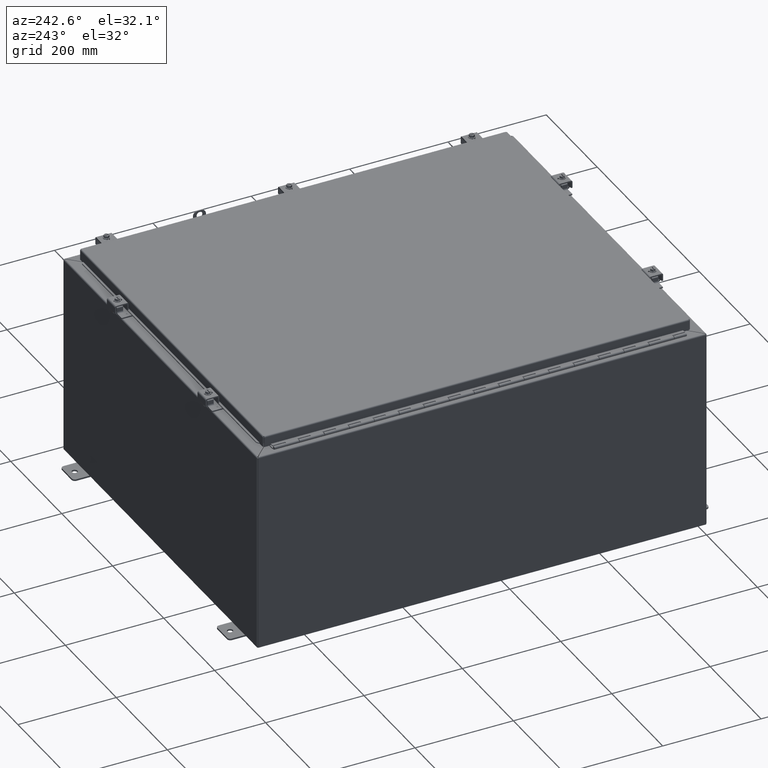
[diagram: clean part render]
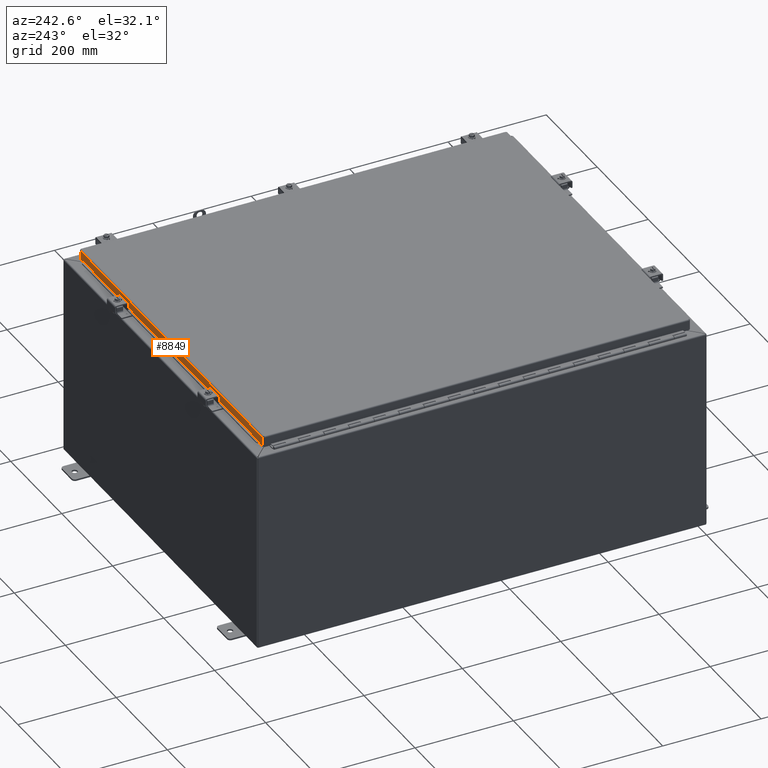
[diagram: same view with one face highlighted and labeled with its STEP entity id]
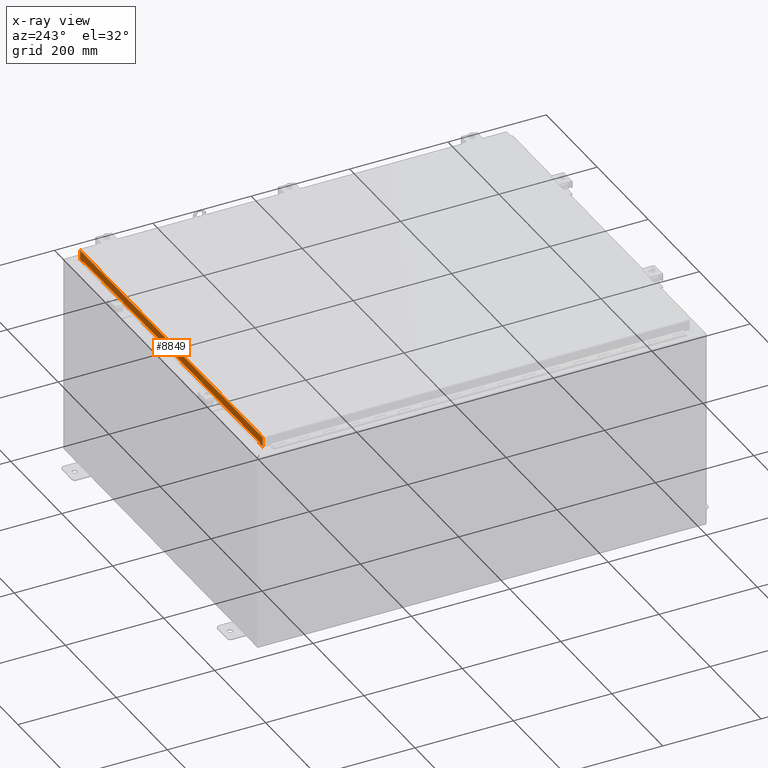
[diagram: x-ray of the same camera — body ghosted, the highlighted face saturated]
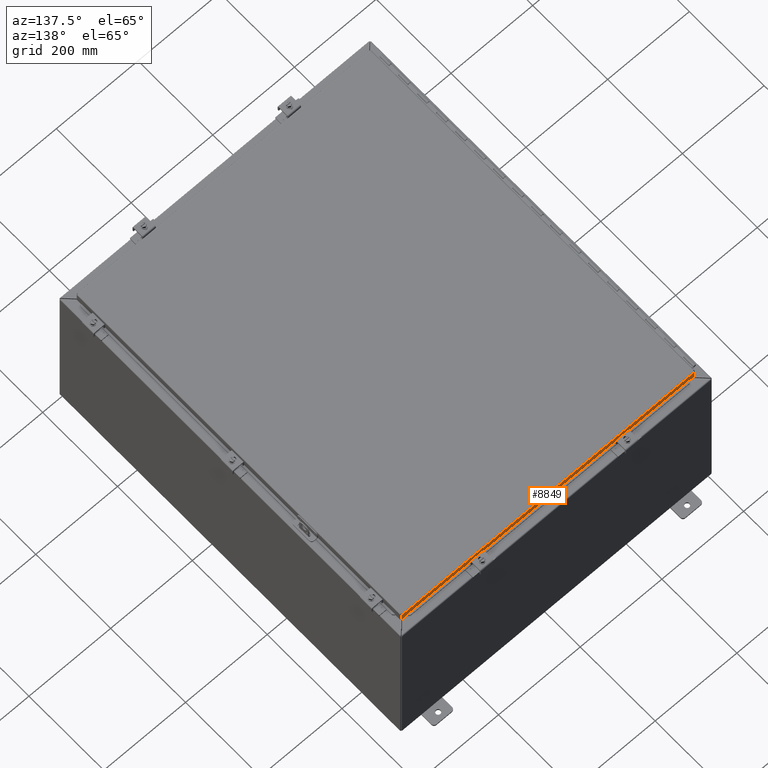
[diagram: same view with one face highlighted and labeled with its STEP entity id]
A machine part, auxiliary view. The second image highlights one B-rep face of the part: STEP entity #8849.
The next image is the same camera in x-ray: the body ghosted, the highlighted face saturated — about 0% of this face is hidden behind the body in this view.
A second angle (auxiliary view) of the same face is appended — the face is thin or edge-on in the first view.
In plain terms, the highlighted planar face has unit normal (-0, -1, -0).
Its self-contained STEP definition (entity closure, byte-faithful):
#8466=CARTESIAN_POINT('',(13.602451456543962,-17.093750000000043,0.769749999999993));
#8467=VERTEX_POINT('',#8466);
#8492=CARTESIAN_POINT('',(-13.602451456543982,-17.093750000000043,0.76974999999999));
#8493=VERTEX_POINT('',#8492);
#8548=CARTESIAN_POINT('',(13.60245145654396,-17.093750000000043,0.769749999999993));
#8549=DIRECTION('',(-1.0,0.0,0.0));
#8550=VECTOR('',#8549,27.204902913087942);
#8551=LINE('',#8548,#8550);
#8552=EDGE_CURVE('',#8467,#8493,#8551,.T.);
#8572=CARTESIAN_POINT('',(-13.602451456543982,-17.093750000000043,0.76954999999999));
#8573=VERTEX_POINT('',#8572);
#8580=CARTESIAN_POINT('',(-13.602451456543982,-17.093750000000043,0.76974999999999));
#8581=DIRECTION('',(0.0,0.0,-1.0));
#8582=VECTOR('',#8581,0.0002);
#8583=LINE('',#8580,#8582);
#8584=EDGE_CURVE('',#8493,#8573,#8583,.T.);
#8604=CARTESIAN_POINT('',(-13.602651456543983,-17.093750000000046,0.87499999999999));
#8605=VERTEX_POINT('',#8604);
#8612=CARTESIAN_POINT('',(-13.602651456543983,-17.093750000000043,0.76954999999999));
#8613=VERTEX_POINT('',#8612);
#8614=CARTESIAN_POINT('',(-13.602651456543983,-17.093750000000043,0.76954999999999));
#8615=DIRECTION('',(0.0,0.0,1.0));
#8616=VECTOR('',#8615,0.10545);
#8617=LINE('',#8614,#8616);
#8618=EDGE_CURVE('',#8613,#8605,#8617,.T.);
#8641=CARTESIAN_POINT('',(-13.602451456543982,-17.093750000000043,0.76954999999999));
#8642=DIRECTION('',(-1.0,0.0,0.0));
#8643=VECTOR('',#8642,0.000200000000001);
#8644=LINE('',#8641,#8643);
#8645=EDGE_CURVE('',#8573,#8613,#8644,.T.);
#8731=CARTESIAN_POINT('',(13.602651456543963,-17.093750000000043,0.769549999999993));
#8732=VERTEX_POINT('',#8731);
#8739=CARTESIAN_POINT('',(13.602651456543963,-17.093750000000046,0.874999999999993));
#8740=VERTEX_POINT('',#8739);
#8741=CARTESIAN_POINT('',(13.602651456543963,-17.09375000000005,0.874999999999993));
#8742=DIRECTION('',(0.0,0.0,-1.0));
#8743=VECTOR('',#8742,0.10545);
#8744=LINE('',#8741,#8743);
#8745=EDGE_CURVE('',#8740,#8732,#8744,.T.);
#8762=CARTESIAN_POINT('',(13.602451456543962,-17.093750000000043,0.769549999999993));
#8763=VERTEX_POINT('',#8762);
#8764=CARTESIAN_POINT('',(13.602451456543962,-17.093750000000039,0.769549999999993));
#8765=DIRECTION('',(0.0,0.0,1.0));
#8766=VECTOR('',#8765,0.0002);
#8767=LINE('',#8764,#8766);
#8768=EDGE_CURVE('',#8763,#8467,#8767,.T.);
#8787=CARTESIAN_POINT('',(13.602651456543963,-17.093750000000043,0.769549999999993));
#8788=DIRECTION('',(-1.0,0.0,0.0));
#8789=VECTOR('',#8788,0.000200000000001);
#8790=LINE('',#8787,#8789);
#8791=EDGE_CURVE('',#8732,#8763,#8790,.T.);
#8797=CARTESIAN_POINT('',(-0.046950708161296,-17.093750000000021,0.440146161915871));
#8798=DIRECTION('',(0.0,1.0,0.0));
#8799=DIRECTION('',(1.0,0.0,0.0));
#8800=AXIS2_PLACEMENT_3D('',#8797,#8798,#8799);
#8801=PLANE('',#8800);
#8802=ORIENTED_EDGE('',*,*,#8618,.T.);
#8803=CARTESIAN_POINT('',(-14.102451456543982,-17.093750000000046,0.87499999999999));
#8804=VERTEX_POINT('',#8803);
#8805=CARTESIAN_POINT('',(-14.102451456543982,-17.093750000000046,0.87499999999999));
#8806=DIRECTION('',(1.0,0.0,0.0));
#8807=VECTOR('',#8806,0.4998);
#8808=LINE('',#8805,#8807);
#8809=EDGE_CURVE('',#8804,#8605,#8808,.T.);
#8810=ORIENTED_EDGE('',*,*,#8809,.F.);
#8811=CARTESIAN_POINT('',(-14.10245145654396,-17.093749999999996,0.105249999999994));
#8812=VERTEX_POINT('',#8811);
#8813=CARTESIAN_POINT('',(-14.102451456543958,-17.093750000000004,0.105249999999994));
#8814=DIRECTION('',(0.0,0.0,1.0));
#8815=VECTOR('',#8814,0.769749999999996);
#8816=LINE('',#8813,#8815);
#8817=EDGE_CURVE('',#8812,#8804,#8816,.T.);
#8818=ORIENTED_EDGE('',*,*,#8817,.F.);
#8819=CARTESIAN_POINT('',(14.102451456543962,-17.09375,0.105249999999996));
#8820=VERTEX_POINT('',#8819);
#8821=CARTESIAN_POINT('',(-14.102451456543958,-17.09375,0.105249999999993));
#8822=DIRECTION('',(1.0,0.0,0.0));
#8823=VECTOR('',#8822,28.204902913087921);
#8824=LINE('',#8821,#8823);
#8825=EDGE_CURVE('',#8812,#8820,#8824,.T.);
#8826=ORIENTED_EDGE('',*,*,#8825,.T.);
#8827=CARTESIAN_POINT('',(14.102451456543962,-17.093750000000046,0.874999999999993));
#8828=VERTEX_POINT('',#8827);
#8829=CARTESIAN_POINT('',(14.102451456543962,-17.093750000000043,0.874999999999993));
#8830=DIRECTION('',(0.0,0.0,-1.0));
#8831=VECTOR('',#8830,0.769749999999997);
#8832=LINE('',#8829,#8831);
#8833=EDGE_CURVE('',#8828,#8820,#8832,.T.);
#8834=ORIENTED_EDGE('',*,*,#8833,.F.);
#8835=CARTESIAN_POINT('',(13.602651456543965,-17.093750000000043,0.874999999999993));
#8836=DIRECTION('',(1.0,0.0,0.0));
#8837=VECTOR('',#8836,0.499799999999997);
#8838=LINE('',#8835,#8837);
#8839=EDGE_CURVE('',#8740,#8828,#8838,.T.);
#8840=ORIENTED_EDGE('',*,*,#8839,.F.);
#8841=ORIENTED_EDGE('',*,*,#8745,.T.);
#8842=ORIENTED_EDGE('',*,*,#8791,.T.);
#8843=ORIENTED_EDGE('',*,*,#8768,.T.);
#8844=ORIENTED_EDGE('',*,*,#8552,.T.);
#8845=ORIENTED_EDGE('',*,*,#8584,.T.);
#8846=ORIENTED_EDGE('',*,*,#8645,.T.);
#8847=EDGE_LOOP('',(#8802,#8810,#8818,#8826,#8834,#8840,#8841,#8842,#8843,#8844,#8845,#8846));
#8848=FACE_OUTER_BOUND('',#8847,.T.);
#8849=ADVANCED_FACE('',(#8848),#8801,.F.);